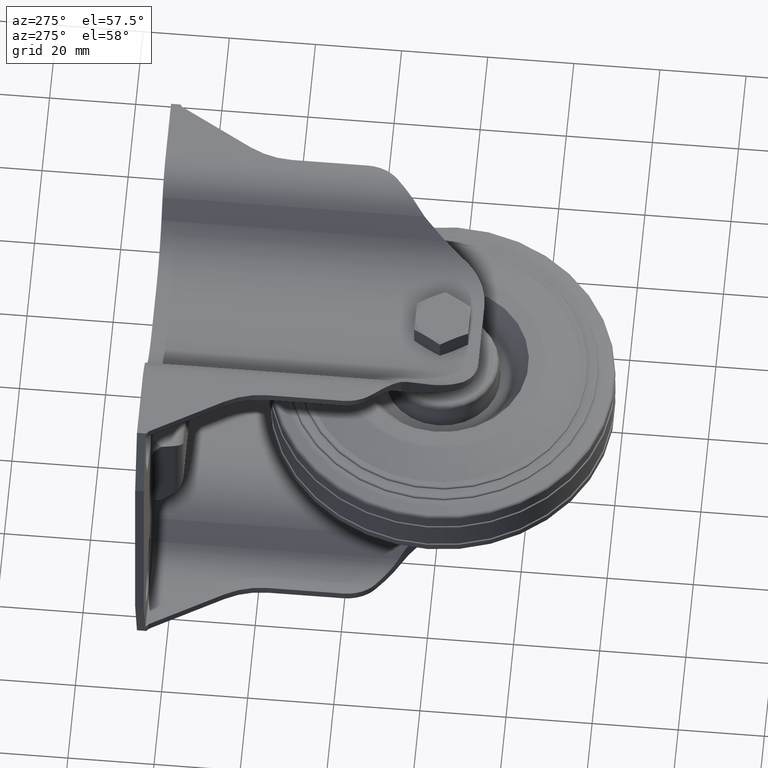
[diagram: clean part render]
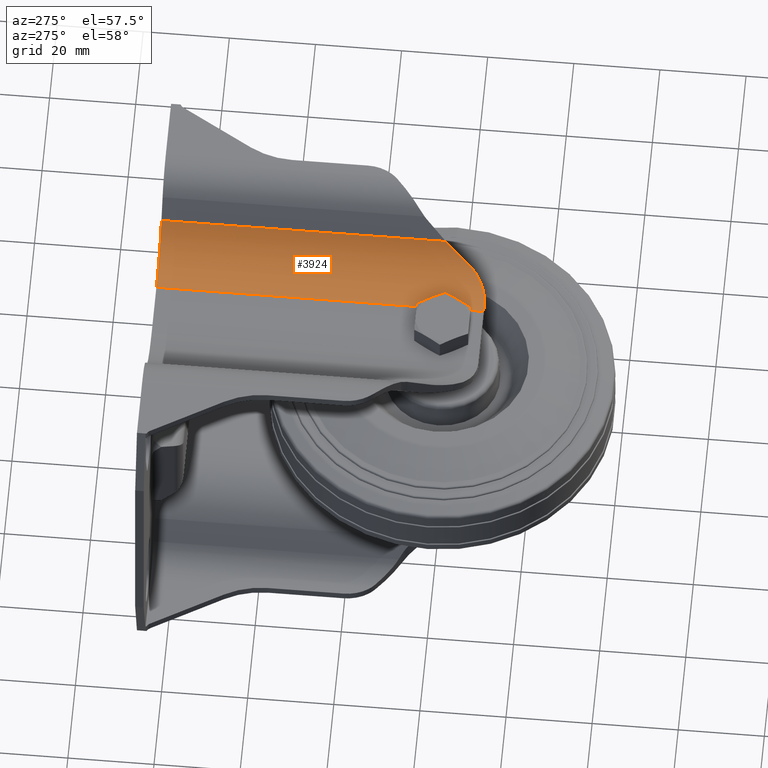
[diagram: same view with one face highlighted and labeled with its STEP entity id]
A machine part, auxiliary view. The second image highlights one B-rep face of the part: STEP entity #3924.
In plain terms, the highlighted cylindrical surface (partial cylindrical patch) has radius 15.5 mm, axis along (0, 1, 0).
Its self-contained STEP definition (entity closure, byte-faithful):
#59=ELLIPSE('',#4338,31.,15.5);
#96=B_SPLINE_CURVE_WITH_KNOTS('',3,(#6500,#6501,#6502,#6503,#6504,#6505,
#6506,#6507),.UNSPECIFIED.,.F.,.F.,(4,2,2,4),(-4.77685521076749,-4.36810699295151,
-3.95935877513553,-3.68877552892377),.UNSPECIFIED.);
#344=LINE('',#6487,#611);
#346=LINE('',#6496,#613);
#611=VECTOR('',#4991,1000.);
#613=VECTOR('',#4999,1000.);
#849=CYLINDRICAL_SURFACE('',#4337,15.5);
#978=FACE_OUTER_BOUND('',#1228,.T.);
#1228=EDGE_LOOP('',(#2920,#2921,#2922,#2923,#2924,#2925));
#1481=CIRCLE('',#4339,15.5);
#1482=CIRCLE('',#4340,15.5);
#1798=VERTEX_POINT('',#6484);
#1799=VERTEX_POINT('',#6486);
#1801=VERTEX_POINT('',#6492);
#1802=VERTEX_POINT('',#6493);
#1803=VERTEX_POINT('',#6495);
#1804=VERTEX_POINT('',#6498);
#2218=EDGE_CURVE('',#1798,#1799,#344,.T.);
#2221=EDGE_CURVE('',#1801,#1802,#59,.F.);
#2222=EDGE_CURVE('',#1801,#1803,#346,.T.);
#2223=EDGE_CURVE('',#1803,#1799,#1481,.T.);
#2224=EDGE_CURVE('',#1804,#1798,#1482,.F.);
#2225=EDGE_CURVE('',#1804,#1802,#96,.T.);
#2920=ORIENTED_EDGE('',*,*,#2221,.F.);
#2921=ORIENTED_EDGE('',*,*,#2222,.T.);
#2922=ORIENTED_EDGE('',*,*,#2223,.T.);
#2923=ORIENTED_EDGE('',*,*,#2218,.F.);
#2924=ORIENTED_EDGE('',*,*,#2224,.F.);
#2925=ORIENTED_EDGE('',*,*,#2225,.T.);
#3924=ADVANCED_FACE('',(#978),#849,.F.);
#4337=AXIS2_PLACEMENT_3D('',#6491,#4995,#4996);
#4338=AXIS2_PLACEMENT_3D('',#6494,#4997,#4998);
#4339=AXIS2_PLACEMENT_3D('',#6497,#5000,#5001);
#4340=AXIS2_PLACEMENT_3D('',#6499,#5002,#5003);
#4991=DIRECTION('',(0.,1.,0.));
#4995=DIRECTION('center_axis',(0.,1.,0.));
#4996=DIRECTION('ref_axis',(0.,0.,1.));
#4997=DIRECTION('center_axis',(0.866025403784438,-0.5,0.));
#4998=DIRECTION('ref_axis',(0.5,0.866025403784438,0.));
#4999=DIRECTION('',(0.,1.,0.));
#5000=DIRECTION('center_axis',(0.,1.,0.));
#5001=DIRECTION('ref_axis',(1.,0.,0.));
#5002=DIRECTION('center_axis',(0.,-1.,0.));
#5003=DIRECTION('ref_axis',(0.,0.,-1.));
#6484=CARTESIAN_POINT('',(6.3010708275608,-9.00000000000001,24.5));
#6486=CARTESIAN_POINT('',(6.3010708275608,67.,24.5));
#6487=CARTESIAN_POINT('',(6.3010708275608,65.,24.5));
#6491=CARTESIAN_POINT('Origin',(6.3010708275608,65.,40.));
#6492=CARTESIAN_POINT('',(19.7244645862196,0.915063509461113,32.25));
#6493=CARTESIAN_POINT('',(16.8867513459481,-4.,28.677748988711));
#6494=CARTESIAN_POINT('Origin',(6.3010708275608,-22.3349364905389,40.));
#6495=CARTESIAN_POINT('',(19.7244645862196,67.,32.25));
#6496=CARTESIAN_POINT('',(19.7244645862196,65.,32.25));
#6497=CARTESIAN_POINT('Origin',(6.3010708275608,67.,40.));
#6498=CARTESIAN_POINT('',(8.22649730810373,-9.00000000000001,24.6200541981441));
#6499=CARTESIAN_POINT('Origin',(6.3010708275608,-9.00000000000001,40.));
#6500=CARTESIAN_POINT('Ctrl Pts',(8.22649730810374,-9.,24.6200541981441));
#6501=CARTESIAN_POINT('Ctrl Pts',(9.57843826221448,-9.00000000000001,24.7893046588877));
#6502=CARTESIAN_POINT('Ctrl Pts',(10.9642882247785,-8.71175711225504,25.1578153664701));
#6503=CARTESIAN_POINT('Ctrl Pts',(13.4359983416072,-7.64145924506606,26.175064501699));
#6504=CARTESIAN_POINT('Ctrl Pts',(14.5247143898839,-6.86204192288158,26.8196309002583));
#6505=CARTESIAN_POINT('Ctrl Pts',(15.93817420583,-5.41702964756545,27.8402930849769));
#6506=CARTESIAN_POINT('Ctrl Pts',(16.4568797363806,-4.74455946850228,28.2758427318837));
#6507=CARTESIAN_POINT('Ctrl Pts',(16.8867513459481,-4.00000000000001,28.677748988711));